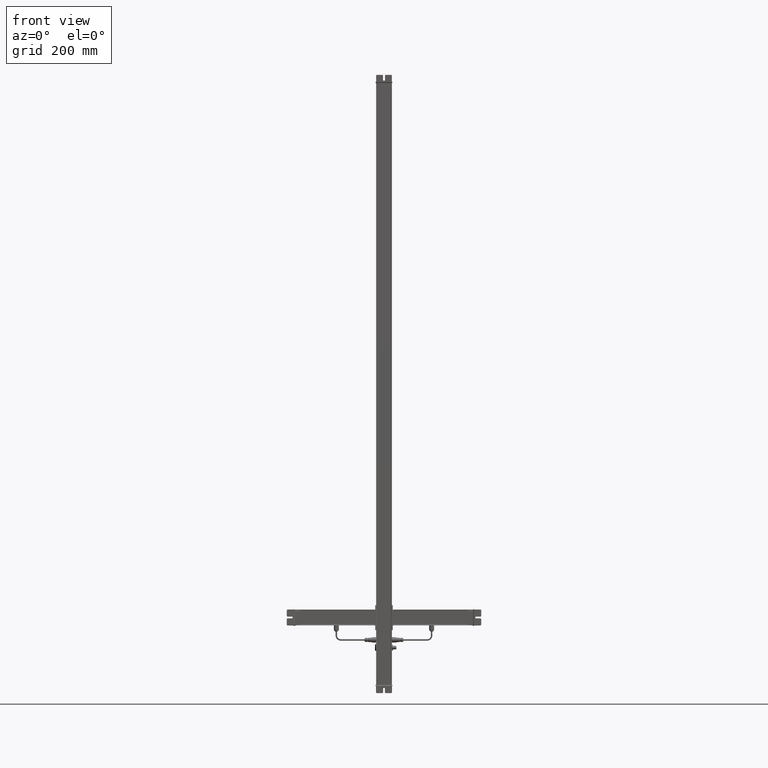
[diagram: clean part render]
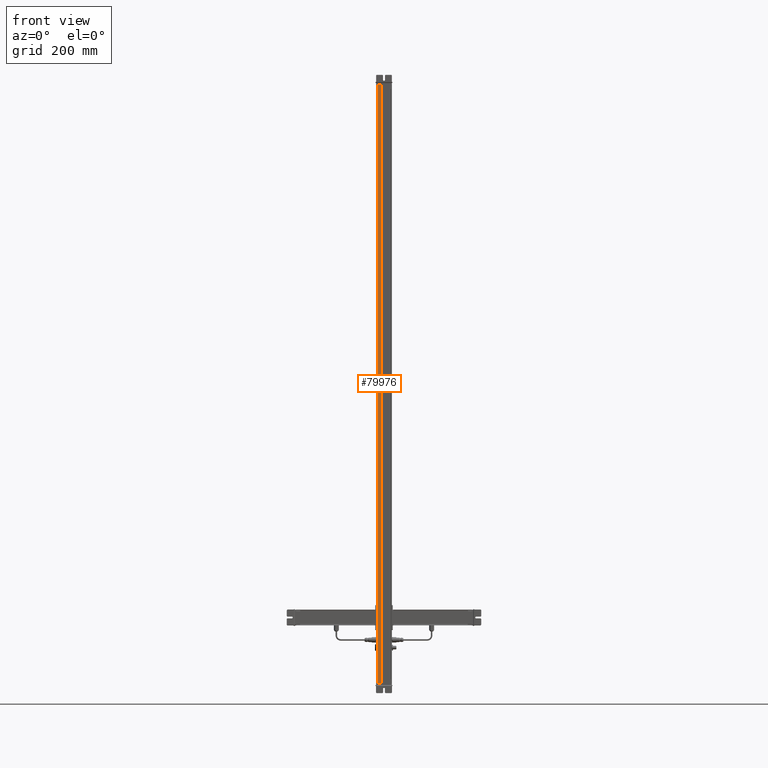
[diagram: same view with one face highlighted and labeled with its STEP entity id]
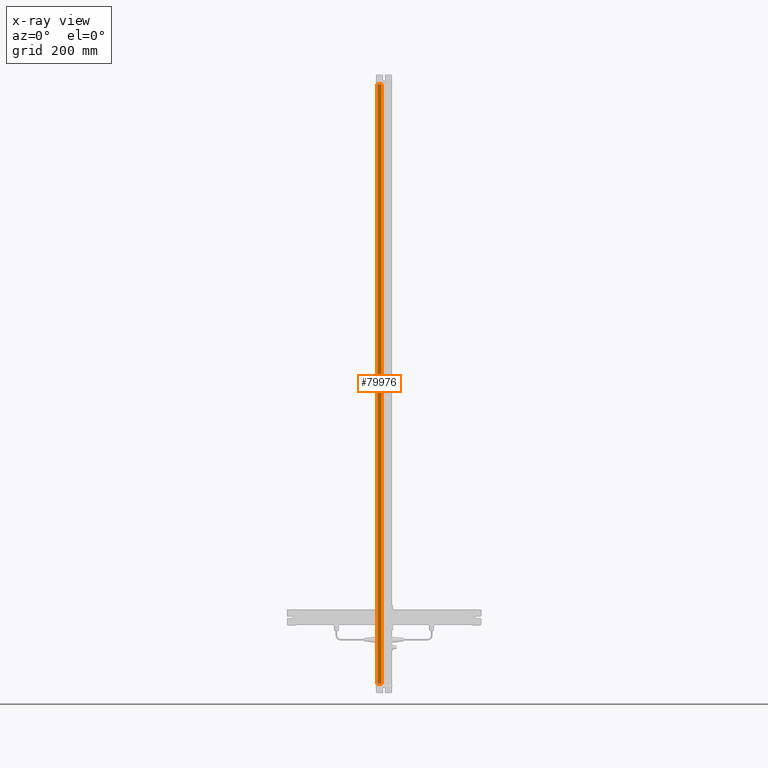
[diagram: x-ray of the same camera — body ghosted, the highlighted face saturated]
A machine part, front view. The second image highlights one B-rep face of the part: STEP entity #79976.
The next image is the same camera in x-ray: the body ghosted, the highlighted face saturated — about 0% of this face is hidden behind the body in this view.
In plain terms, the highlighted planar face has unit normal (0, -1, 0).
Its self-contained STEP definition (entity closure, byte-faithful):
#79924=CARTESIAN_POINT('Vertex',(617.246770587,120.060780121,0.)) ;
#79927=CARTESIAN_POINT('Line Origine',(617.246770587,120.060780121,1006.)) ;
#79931=CARTESIAN_POINT('Vertex',(617.246770587,120.060780121,2012.)) ;
#79946=CARTESIAN_POINT('Axis2P3D Location',(647.67209889,120.060780121,0.)) ;
#79951=CARTESIAN_POINT('Line Origine',(624.483052148,120.060780121,0.)) ;
#79955=CARTESIAN_POINT('Vertex',(631.719333708,120.060780121,0.)) ;
#79958=CARTESIAN_POINT('Line Origine',(631.719333708,120.060780121,1006.)) ;
#79962=CARTESIAN_POINT('Vertex',(631.719333708,120.060780121,2012.)) ;
#79965=CARTESIAN_POINT('Line Origine',(624.483052148,120.060780121,2012.)) ;
#79928=DIRECTION('Vector Direction',(0.,0.,1.)) ;
#79947=DIRECTION('Axis2P3D Direction',(0.,-1.,0.)) ;
#79948=DIRECTION('Axis2P3D XDirection',(1.,0.,0.)) ;
#79952=DIRECTION('Vector Direction',(1.,0.,0.)) ;
#79959=DIRECTION('Vector Direction',(0.,0.,1.)) ;
#79966=DIRECTION('Vector Direction',(1.,0.,0.)) ;
#79949=AXIS2_PLACEMENT_3D('Plane Axis2P3D',#79946,#79947,#79948) ;
#79971=ORIENTED_EDGE('',*,*,#79933,.F.) ;
#79972=ORIENTED_EDGE('',*,*,#79957,.T.) ;
#79973=ORIENTED_EDGE('',*,*,#79964,.T.) ;
#79974=ORIENTED_EDGE('',*,*,#79969,.F.) ;
#79929=VECTOR('Line Direction',#79928,1.) ;
#79953=VECTOR('Line Direction',#79952,1.) ;
#79960=VECTOR('Line Direction',#79959,1.) ;
#79967=VECTOR('Line Direction',#79966,1.) ;
#79976=ADVANCED_FACE('Body.2',(#79975),#79950,.T.) ;
#79933=EDGE_CURVE('',#79925,#79932,#79930,.T.) ;
#79957=EDGE_CURVE('',#79925,#79956,#79954,.T.) ;
#79964=EDGE_CURVE('',#79956,#79963,#79961,.T.) ;
#79969=EDGE_CURVE('',#79932,#79963,#79968,.T.) ;
#79970=EDGE_LOOP('',(#79971,#79972,#79973,#79974)) ;
#79975=FACE_OUTER_BOUND('',#79970,.T.) ;
#79930=LINE('Line',#79927,#79929) ;
#79954=LINE('Line',#79951,#79953) ;
#79961=LINE('Line',#79958,#79960) ;
#79968=LINE('Line',#79965,#79967) ;
#79950=PLANE('Plane',#79949) ;
#79925=VERTEX_POINT('',#79924) ;
#79932=VERTEX_POINT('',#79931) ;
#79956=VERTEX_POINT('',#79955) ;
#79963=VERTEX_POINT('',#79962) ;